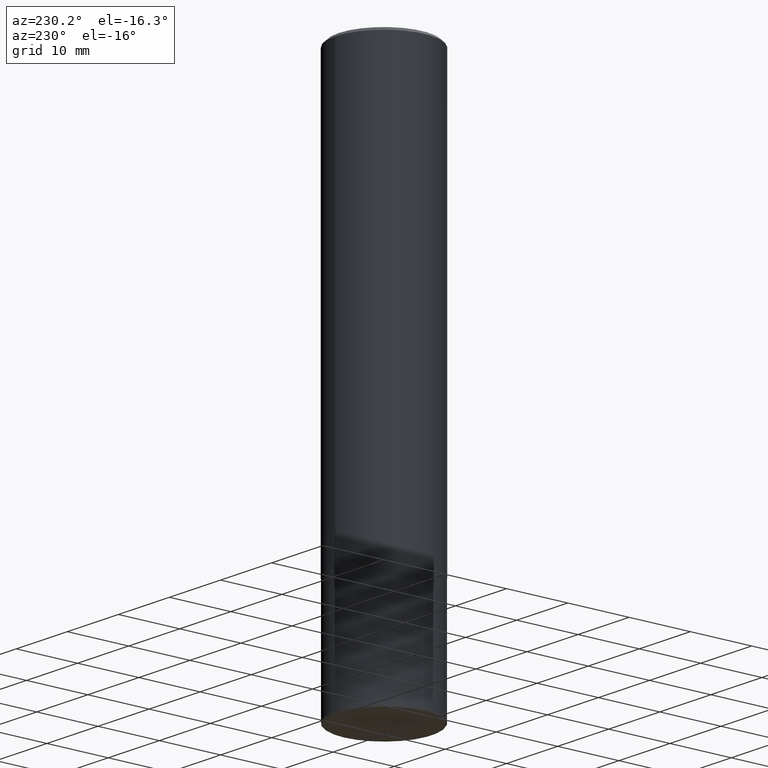
[diagram: clean part render]
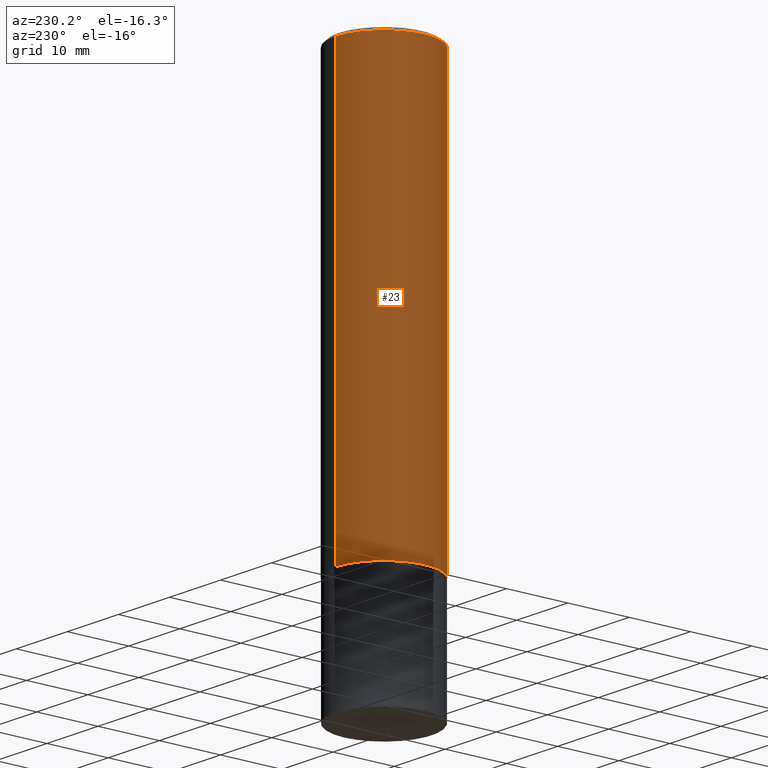
[diagram: same view with one face highlighted and labeled with its STEP entity id]
A machine part, auxiliary view. The second image highlights one B-rep face of the part: STEP entity #23.
In plain terms, the highlighted cylindrical surface (partial cylindrical patch) has radius 7.9375 mm, axis along (-0, 0, 1).
Its self-contained STEP definition (entity closure, byte-faithful):
#23 = ADVANCED_FACE ( 'NONE', ( #51 ), #306, .T. ) ;
#31 = DIRECTION ( 'NONE',  ( -2.444797333483953649E-29, 3.492442925969092226E-15, 1.000000000000000000 ) ) ;
#33 = EDGE_CURVE ( 'NONE', #230, #388, #48, .T. ) ;
#40 = EDGE_LOOP ( 'NONE', ( #377, #325, #171, #199 ) ) ;
#45 = CARTESIAN_POINT ( 'NONE',  ( -2.182175836776958741E-15, -0.3125000000000000555, 1.091388414365341542E-15 ) ) ;
#48 = LINE ( 'NONE', #206, #178 ) ;
#51 = FACE_OUTER_BOUND ( 'NONE', #40, .T. ) ;
#57 = LINE ( 'NONE', #45, #381 ) ;
#63 = DIRECTION ( 'NONE',  ( -6.982962677686265133E-15, -1.000000000000000000, 3.496765431890258103E-15 ) ) ;
#67 = EDGE_CURVE ( 'NONE', #262, #70, #57, .T. ) ;
#69 = CARTESIAN_POINT ( 'NONE',  ( 2.182175836776957558E-15, 0.3124999999999998335, -0.02000000000000116268 ) ) ;
#70 = VERTEX_POINT ( 'NONE', #177 ) ;
#82 = DIRECTION ( 'NONE',  ( -2.444797333483953649E-29, 3.492442925969092226E-15, 1.000000000000000000 ) ) ;
#89 = DIRECTION ( 'NONE',  ( -2.444797333483953649E-29, 3.492442925969092620E-15, 1.000000000000000000 ) ) ;
#93 = CARTESIAN_POINT ( 'NONE',  ( -2.182175836776892872E-15, -0.3125000000000099365, -2.748999999999999222 ) ) ;
#101 = CARTESIAN_POINT ( 'NONE',  ( 2.220446049250347791E-15, 0.3124999999999906741, -2.749000000000000998 ) ) ;
#114 = CARTESIAN_POINT ( 'NONE',  ( 0.000000000000000000, 0.000000000000000000, 0.000000000000000000 ) ) ;
#131 = CARTESIAN_POINT ( 'NONE',  ( 6.720747869747387921E-29, -9.600725603489034077E-15, -2.749000000000000110 ) ) ;
#132 = AXIS2_PLACEMENT_3D ( 'NONE', #114, #82, #401 ) ;
#171 = ORIENTED_EDGE ( 'NONE', *, *, #67, .T. ) ;
#177 = CARTESIAN_POINT ( 'NONE',  ( -2.143905624303602036E-15, -0.3124999999999999445, -0.01999999999999897693 ) ) ;
#178 = VECTOR ( 'NONE', #89, 39.37007874015748143 ) ;
#186 = AXIS2_PLACEMENT_3D ( 'NONE', #131, #219, #255 ) ;
#188 = EDGE_CURVE ( 'NONE', #230, #262, #321, .T. ) ;
#199 = ORIENTED_EDGE ( 'NONE', *, *, #285, .F. ) ;
#206 = CARTESIAN_POINT ( 'NONE',  ( 2.220446049250313081E-15, 0.3125000000000000555, -1.091388414365341542E-15 ) ) ;
#213 = DIRECTION ( 'NONE',  ( -2.444797333483953649E-29, 3.492442925969092620E-15, 1.000000000000000000 ) ) ;
#218 = CIRCLE ( 'NONE', #278, 0.3124999999999998890 ) ;
#219 = DIRECTION ( 'NONE',  ( -2.444797333483953649E-29, 3.492442925969092226E-15, 1.000000000000000000 ) ) ;
#220 = CARTESIAN_POINT ( 'NONE',  ( 4.889594666967924290E-31, -6.984885851938207279E-17, -0.02000000000000006981 ) ) ;
#230 = VERTEX_POINT ( 'NONE', #101 ) ;
#255 = DIRECTION ( 'NONE',  ( -6.982962677686265922E-15, -1.000000000000000000, 3.496765431890253764E-15 ) ) ;
#262 = VERTEX_POINT ( 'NONE', #93 ) ;
#278 = AXIS2_PLACEMENT_3D ( 'NONE', #220, #31, #63 ) ;
#285 = EDGE_CURVE ( 'NONE', #388, #70, #218, .T. ) ;
#306 = CYLINDRICAL_SURFACE ( 'NONE', #132, 0.3125000000000000555 ) ;
#321 = CIRCLE ( 'NONE', #186, 0.3125000000000002776 ) ;
#325 = ORIENTED_EDGE ( 'NONE', *, *, #188, .T. ) ;
#377 = ORIENTED_EDGE ( 'NONE', *, *, #33, .F. ) ;
#381 = VECTOR ( 'NONE', #213, 39.37007874015748143 ) ;
#388 = VERTEX_POINT ( 'NONE', #69 ) ;
#401 = DIRECTION ( 'NONE',  ( -6.982962677686266711E-15, -1.000000000000000000, 3.492442925969092226E-15 ) ) ;